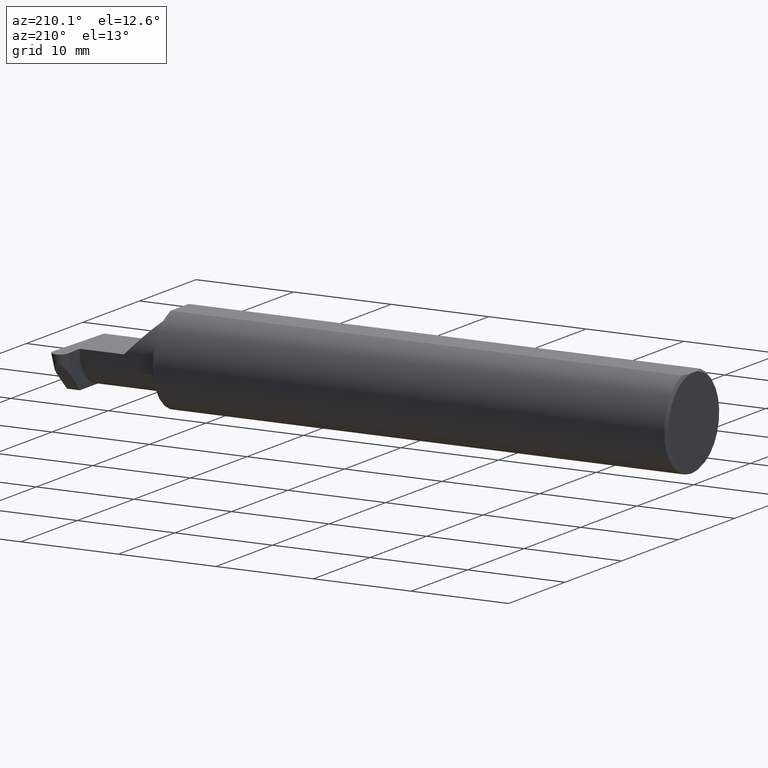
[diagram: clean part render]
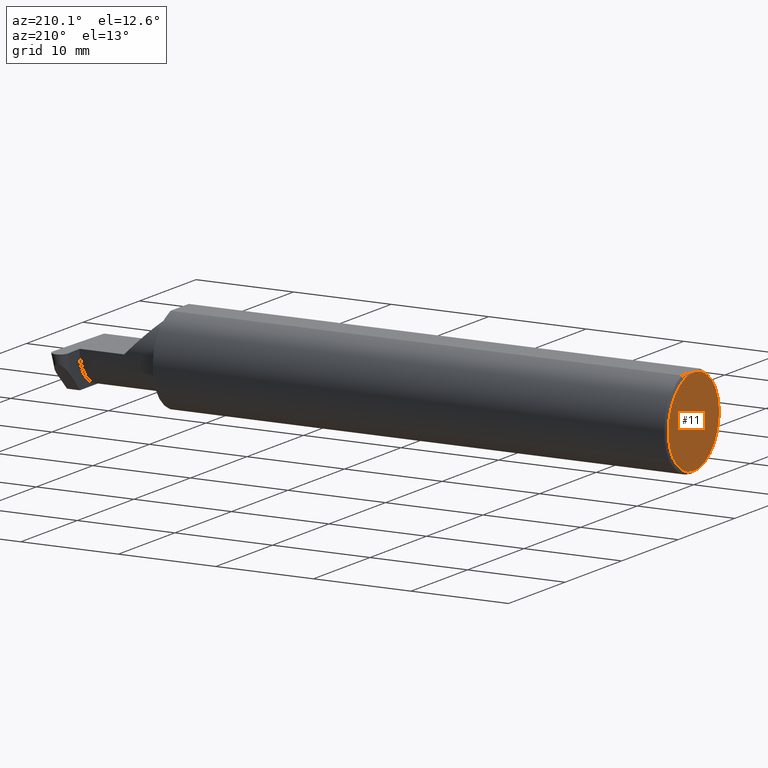
[diagram: same view with one face highlighted and labeled with its STEP entity id]
A machine part, auxiliary view. The second image highlights one B-rep face of the part: STEP entity #11.
In plain terms, the highlighted planar face has unit normal (1, 0, 0).
Its self-contained STEP definition (entity closure, byte-faithful):
#11 = ADVANCED_FACE ( 'NONE', ( #51 ), #547, .F. ) ;
#51 = FACE_OUTER_BOUND ( 'NONE', #614, .T. ) ;
#63 = DIRECTION ( 'NONE',  ( 0.000000000000000000, 0.000000000000000000, -1.000000000000000000 ) ) ;
#66 = AXIS2_PLACEMENT_3D ( 'NONE', #164, #616, #415 ) ;
#72 = ORIENTED_EDGE ( 'NONE', *, *, #168, .T. ) ;
#75 = EDGE_CURVE ( 'NONE', #408, #640, #115, .T. ) ;
#87 = CARTESIAN_POINT ( 'NONE',  ( 0.000000000000000000, -0.01880691362239451242, 0.1763499999999999235 ) ) ;
#108 = CIRCLE ( 'NONE', #145, 0.1773500000000005072 ) ;
#115 = LINE ( 'NONE', #542, #391 ) ;
#127 = ORIENTED_EDGE ( 'NONE', *, *, #75, .T. ) ;
#145 = AXIS2_PLACEMENT_3D ( 'NONE', #380, #814, #316 ) ;
#160 = CARTESIAN_POINT ( 'NONE',  ( 0.000000000000000000, 0.000000000000000000, -0.1773500000000005072 ) ) ;
#164 = CARTESIAN_POINT ( 'NONE',  ( 0.000000000000000000, 0.000000000000000000, 0.000000000000000000 ) ) ;
#168 = EDGE_CURVE ( 'NONE', #325, #408, #108, .T. ) ;
#194 = EDGE_CURVE ( 'NONE', #640, #325, #368, .T. ) ;
#197 = AXIS2_PLACEMENT_3D ( 'NONE', #571, #559, #63 ) ;
#316 = DIRECTION ( 'NONE',  ( 0.000000000000000000, 0.000000000000000000, -1.000000000000000000 ) ) ;
#319 = ORIENTED_EDGE ( 'NONE', *, *, #194, .T. ) ;
#325 = VERTEX_POINT ( 'NONE', #160 ) ;
#368 = CIRCLE ( 'NONE', #197, 0.1773500000000005072 ) ;
#380 = CARTESIAN_POINT ( 'NONE',  ( 0.000000000000000000, 0.000000000000000000, 0.000000000000000000 ) ) ;
#391 = VECTOR ( 'NONE', #808, 39.37007874015748143 ) ;
#408 = VERTEX_POINT ( 'NONE', #87 ) ;
#415 = DIRECTION ( 'NONE',  ( 0.000000000000000000, 0.000000000000000000, -1.000000000000000000 ) ) ;
#542 = CARTESIAN_POINT ( 'NONE',  ( 0.000000000000000000, 0.1873499999999998500, 0.1763499999999999235 ) ) ;
#547 = PLANE ( 'NONE',  #66 ) ;
#559 = DIRECTION ( 'NONE',  ( -1.000000000000000000, -0.000000000000000000, -0.000000000000000000 ) ) ;
#571 = CARTESIAN_POINT ( 'NONE',  ( 0.000000000000000000, 0.000000000000000000, 0.000000000000000000 ) ) ;
#614 = EDGE_LOOP ( 'NONE', ( #127, #319, #72 ) ) ;
#616 = DIRECTION ( 'NONE',  ( 1.000000000000000000, 0.000000000000000000, 0.000000000000000000 ) ) ;
#640 = VERTEX_POINT ( 'NONE', #789 ) ;
#789 = CARTESIAN_POINT ( 'NONE',  ( 0.000000000000000000, 0.01880691362239451242, 0.1763499999999999235 ) ) ;
#808 = DIRECTION ( 'NONE',  ( -0.000000000000000000, 1.000000000000000000, -0.000000000000000000 ) ) ;
#814 = DIRECTION ( 'NONE',  ( -1.000000000000000000, -0.000000000000000000, -0.000000000000000000 ) ) ;